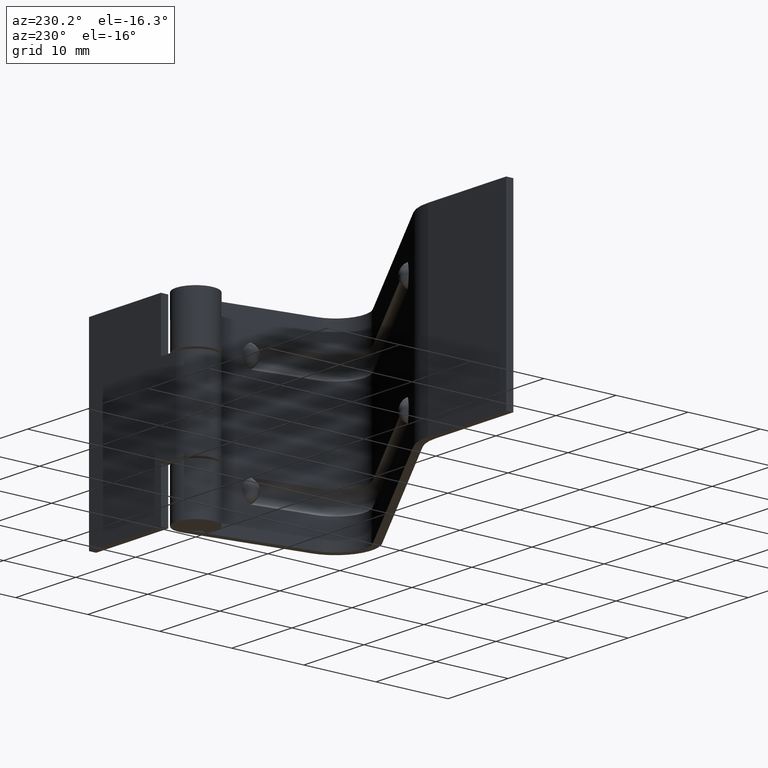
[diagram: clean part render]
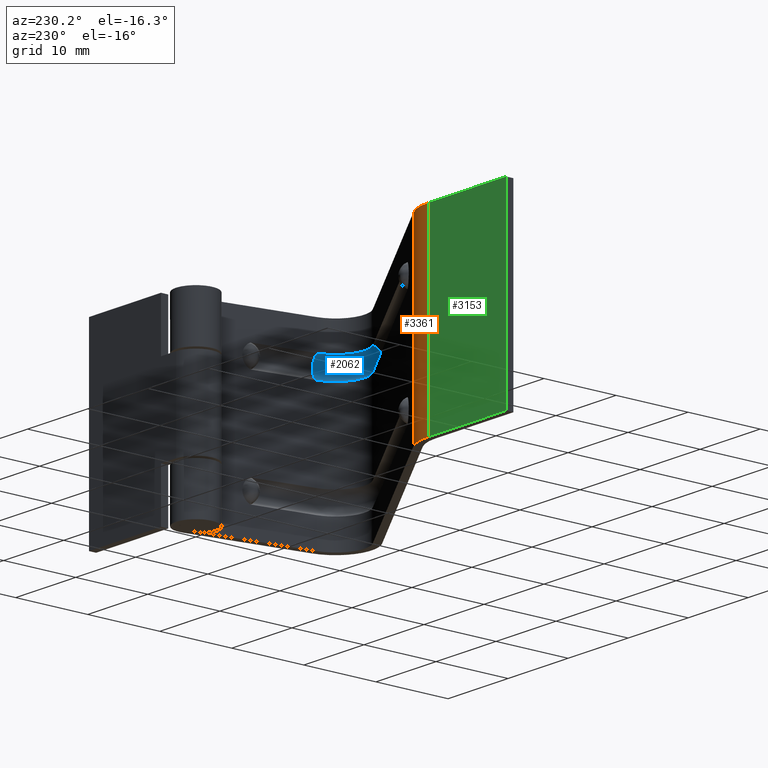
[diagram: same view with three faces highlighted in distinct colors, each labeled with its STEP entity id]
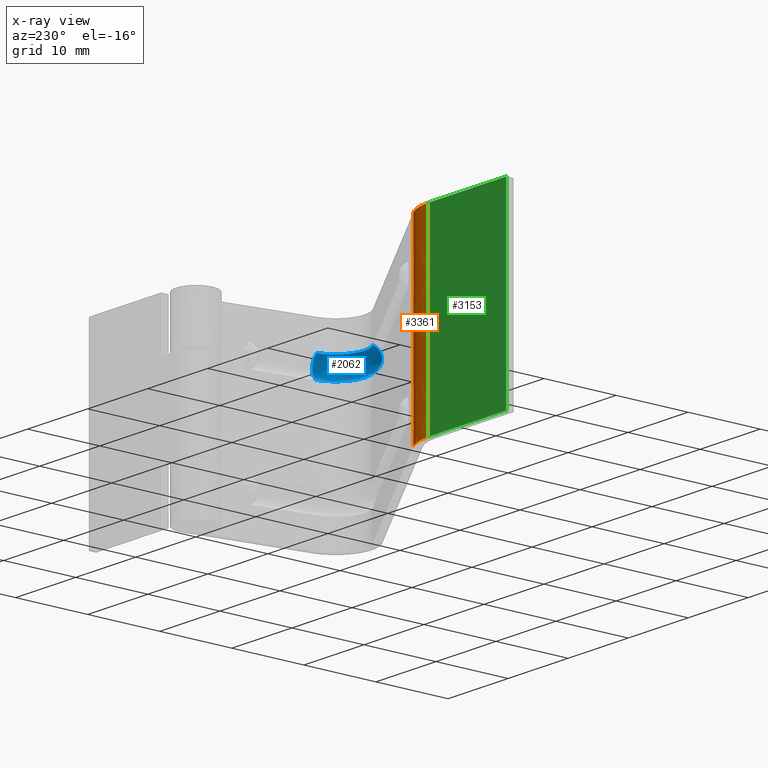
[diagram: x-ray of the same camera — body ghosted, the three highlighted faces saturated]
A machine part, auxiliary view with three faces highlighted in distinct colors.
The next image is the same camera in x-ray (body ghosted, the three faces saturated) — at least one of them is partly hidden behind the body in this view.
Their STEP definitions:

[orange] entity #3361 — the highlighted face is a freeform B-spline surface patch.
#2799=CARTESIAN_POINT('',(-42.000013541700802,2.750000000000000,26.0));
#2800=VERTEX_POINT('',#2799);
#2801=CARTESIAN_POINT('',(-38.178128604412152,1.614571214174675,26.0));
#2802=VERTEX_POINT('',#2801);
#2803=CARTESIAN_POINT('',(-42.000013541700802,2.750000000000000,26.0));
#2804=CARTESIAN_POINT('',(-39.920411033725820,2.750000000000000,26.0));
#2805=CARTESIAN_POINT('',(-38.178128604412159,1.614571214174670,26.0));
#2813=(BOUNDED_CURVE()B_SPLINE_CURVE(2,(#2803,#2804,#2805),.UNSPECIFIED.,.F.,.U.)CURVE()GEOMETRIC_REPRESENTATION_ITEM()QUASI_UNIFORM_CURVE()RATIONAL_B_SPLINE_CURVE((1.0,0.958591646046229,1.0))REPRESENTATION_ITEM(''));
#2814=EDGE_CURVE('',#2800,#2802,#2813,.T.);
#2969=CARTESIAN_POINT('',(-42.000013541700802,2.750000000000000,0.0));
#2970=VERTEX_POINT('',#2969);
#2971=CARTESIAN_POINT('',(-38.178128604412152,1.614571214174675,0.0));
#2972=VERTEX_POINT('',#2971);
#2973=CARTESIAN_POINT('',(-42.000013541700802,2.750000000000000,0.0));
#2974=CARTESIAN_POINT('',(-39.920411033725820,2.750000000000000,0.0));
#2975=CARTESIAN_POINT('',(-38.178128604412159,1.614571214174670,0.0));
#2983=(BOUNDED_CURVE()B_SPLINE_CURVE(2,(#2973,#2974,#2975),.UNSPECIFIED.,.F.,.U.)CURVE()GEOMETRIC_REPRESENTATION_ITEM()QUASI_UNIFORM_CURVE()RATIONAL_B_SPLINE_CURVE((1.0,0.958591646046229,1.0))REPRESENTATION_ITEM(''));
#2984=EDGE_CURVE('',#2970,#2972,#2983,.T.);
#3140=CARTESIAN_POINT('',(-42.000013541700802,2.750000000000000,0.0));
#3141=CARTESIAN_POINT('',(-42.000013541700802,2.750000000000000,26.0));
#3142=QUASI_UNIFORM_CURVE('',1,(#3140,#3141),.UNSPECIFIED.,.F.,.U.);
#3143=EDGE_CURVE('',#2970,#2800,#3142,.T.);
#3337=CARTESIAN_POINT('',(-42.198162288322926,2.747194943276345,-0.650000000000000));
#3338=CARTESIAN_POINT('',(-42.198162288322926,2.747194943276345,26.666249999999998));
#3339=CARTESIAN_POINT('',(-39.901314587841760,2.812237792121015,-0.650000000000001));
#3340=CARTESIAN_POINT('',(-39.901314587841760,2.812237792121015,26.666250000000005));
#3341=CARTESIAN_POINT('',(-38.012743886648515,1.503406008435285,-0.650000000000001));
#3342=CARTESIAN_POINT('',(-38.012743886648515,1.503406008435285,26.666250000000002));
#3350=(BOUNDED_SURFACE()B_SPLINE_SURFACE(1,2,((#3337,#3339,#3341),(#3338,#3340,#3342)),.UNSPECIFIED.,.F.,.F.,.U.)B_SPLINE_SURFACE_WITH_KNOTS((2,2),(3,3),(0.0,27.316250000000000),(0.0,4.477986694050300),.UNSPECIFIED.)GEOMETRIC_REPRESENTATION_ITEM()RATIONAL_B_SPLINE_SURFACE(((0.997632341696851,0.945120504605281,0.991848929808559),(0.997632341696851,0.945120504605281,0.991848929808559)))REPRESENTATION_ITEM('')SURFACE());
#3351=ORIENTED_EDGE('',*,*,#2814,.T.);
#3352=CARTESIAN_POINT('',(-38.178128604412152,1.614571214174675,0.0));
#3353=CARTESIAN_POINT('',(-38.178128604412152,1.614571214174675,26.0));
#3354=QUASI_UNIFORM_CURVE('',1,(#3352,#3353),.UNSPECIFIED.,.F.,.U.);
#3355=EDGE_CURVE('',#2972,#2802,#3354,.T.);
#3356=ORIENTED_EDGE('',*,*,#3355,.F.);
#3357=ORIENTED_EDGE('',*,*,#2984,.F.);
#3358=ORIENTED_EDGE('',*,*,#3143,.T.);
#3359=EDGE_LOOP('',(#3351,#3356,#3357,#3358));
#3360=FACE_OUTER_BOUND('',#3359,.T.);
#3361=ADVANCED_FACE('',(#3360),#3350,.T.);

[blue] entity #2062 — the highlighted face is a freeform B-spline surface patch.
#1922=CARTESIAN_POINT('',(-1.034467538305070,-15.944587033230849,19.000002277980801));
#1923=VERTEX_POINT('',#1922);
#1934=CARTESIAN_POINT('',(-1.034467538305070,-15.944587033230849,21.999997722019451));
#1935=VERTEX_POINT('',#1934);
#1936=CARTESIAN_POINT('',(-1.034467538305070,-15.944587033230849,21.999997722019451));
#1937=CARTESIAN_POINT('',(-0.049664960912181,-16.118233079529698,21.583329055834490));
#1938=CARTESIAN_POINT('',(-0.049664960912180,-16.118233079529698,20.500000000000000));
#1939=CARTESIAN_POINT('',(-0.049664960912181,-16.118233079529698,19.416670944165578));
#1940=CARTESIAN_POINT('',(-1.034467538305070,-15.944587033230849,19.000002277980801));
#1948=(BOUNDED_CURVE()B_SPLINE_CURVE(2,(#1936,#1937,#1938,#1939,#1940),.UNSPECIFIED.,.F.,.U.)B_SPLINE_CURVE_WITH_KNOTS((3,2,3),(0.0,0.500000000000000,1.0),.UNSPECIFIED.)CURVE()GEOMETRIC_REPRESENTATION_ITEM()RATIONAL_B_SPLINE_CURVE((1.0,0.832051305204674,1.0,0.832051305204674,1.0))REPRESENTATION_ITEM(''));
#1949=EDGE_CURVE('',#1935,#1923,#1948,.T.);
#1965=CARTESIAN_POINT('',(-7.361929989765980,-18.241240626427661,18.939330552587094));
#1966=CARTESIAN_POINT('',(-5.551646898517626,-19.686588483763838,18.939330552587109));
#1967=CARTESIAN_POINT('',(-3.431494070751995,-18.753257199554763,18.939330552587098));
#1968=CARTESIAN_POINT('',(-1.336283289628677,-17.830905874959271,18.939330552587098));
#1969=CARTESIAN_POINT('',(-1.157674349181865,-15.548639670128882,18.939330552587101));
#1970=CARTESIAN_POINT('',(-8.093372349662657,-19.157364540558728,19.279376349585789));
#1971=CARTESIAN_POINT('',(-5.728655884988130,-21.045377466243178,19.279376349585796));
#1972=CARTESIAN_POINT('',(-2.959166226889218,-19.826195855679142,19.279376349585792));
#1973=CARTESIAN_POINT('',(-0.222257588103194,-18.621357024653403,19.279376349585799));
#1974=CARTESIAN_POINT('',(0.011053712352799,-15.640103707189654,19.279376349585796));
#1975=CARTESIAN_POINT('',(-8.093372349662657,-19.157364540558721,20.500000000000000));
#1976=CARTESIAN_POINT('',(-5.728655884988132,-21.045377466243163,20.500000000000004));
#1977=CARTESIAN_POINT('',(-2.959166226889218,-19.826195855679138,20.500000000000000));
#1978=CARTESIAN_POINT('',(-0.222257588103194,-18.621357024653395,20.500000000000004));
#1979=CARTESIAN_POINT('',(0.011053712352799,-15.640103707189654,20.500000000000007));
#1980=CARTESIAN_POINT('',(-8.093372349662657,-19.157364540558721,21.720624563740898));
#1981=CARTESIAN_POINT('',(-5.728655884988131,-21.045377466243171,21.720624563740898));
#1982=CARTESIAN_POINT('',(-2.959166226889218,-19.826195855679135,21.720624563740891));
#1983=CARTESIAN_POINT('',(-0.222257588103194,-18.621357024653406,21.720624563740905));
#1984=CARTESIAN_POINT('',(0.011053712352799,-15.640103707189660,21.720624563740895));
#1985=CARTESIAN_POINT('',(-7.361929289998826,-18.241239749976611,22.060669772732535));
#1986=CARTESIAN_POINT('',(-5.551646729174037,-19.686587183817387,22.060669772732538));
#1987=CARTESIAN_POINT('',(-3.431494522625621,-18.753256173079851,22.060669772732528));
#1988=CARTESIAN_POINT('',(-1.336284355411352,-17.830905118738713,22.060669772732531));
#1989=CARTESIAN_POINT('',(-1.157675467298007,-15.548639582625706,22.060669772732535));
#1997=(BOUNDED_SURFACE()B_SPLINE_SURFACE(2,2,((#1965,#1970,#1975,#1980,#1985),(#1966,#1971,#1976,#1981,#1986),(#1967,#1972,#1977,#1982,#1987),(#1968,#1973,#1978,#1983,#1988),(#1969,#1974,#1979,#1984,#1989)),.UNSPECIFIED.,.F.,.F.,.U.)B_SPLINE_SURFACE_WITH_KNOTS((3,2,3),(3,2,3),(0.0,5.580308779946733,11.105273504408530),(0.0,2.169211577859827,4.338424435398080),.UNSPECIFIED.)GEOMETRIC_REPRESENTATION_ITEM()RATIONAL_B_SPLINE_SURFACE(((0.940627972825696,0.762715212370394,0.967403768386343,0.762715091618905,0.940628182737230),(0.818176909503989,0.663424853732822,0.841467028758587,0.663424748700776,0.818177092089215),(0.972322006140921,0.788414555840138,1.0,0.788414431019981,0.972322223125329),(0.819705680602044,0.664664469188033,0.843039317659177,0.664664363959733,0.819705863528432),(0.938226303473127,0.760767800850423,0.964933733421177,0.760767680407244,0.938226512848702)))REPRESENTATION_ITEM('')SURFACE());
#1998=CARTESIAN_POINT('',(-7.157627502861881,-18.601184037780900,21.999995444038749));
#1999=VERTEX_POINT('',#1998);
#2000=CARTESIAN_POINT('',(-7.157627502861881,-18.601184037780900,21.999995444038749));
#2001=CARTESIAN_POINT('',(-6.882018127036361,-18.780795537770711,21.999995505931750));
#2002=CARTESIAN_POINT('',(-6.584156513306377,-18.926224413094928,21.999995579435058));
#2003=CARTESIAN_POINT('',(-5.961895097884391,-19.139944731675840,21.999995745228780));
#2004=CARTESIAN_POINT('',(-5.637533469257731,-19.208222582319841,21.999995837509100));
#2005=CARTESIAN_POINT('',(-4.981916928341752,-19.263494270171520,21.999996035269451));
#2006=CARTESIAN_POINT('',(-4.650702391371972,-19.250484703541840,21.999996140737309));
#2007=CARTESIAN_POINT('',(-4.001441000130878,-19.143959539446929,21.999996358486129));
#2008=CARTESIAN_POINT('',(-3.683434129805209,-19.050450502199869,21.999996470753679));
#2009=CARTESIAN_POINT('',(-3.079851514986964,-18.788580364937339,21.999996695302631));
#2010=CARTESIAN_POINT('',(-2.794312941370081,-18.620235391864679,21.999996807570199));
#2011=CARTESIAN_POINT('',(-2.272966116493233,-18.218880894237110,21.999997025319090));
#2012=CARTESIAN_POINT('',(-2.037189971721333,-17.985896086593780,21.999997130787008));
#2013=CARTESIAN_POINT('',(-1.629655199019036,-17.469365950282821,21.999997328547501));
#2014=CARTESIAN_POINT('',(-1.457921668604711,-17.185852431473538,21.999997420827910));
#2015=CARTESIAN_POINT('',(-1.188881988690127,-16.585431187730219,21.999997586622321));
#2016=CARTESIAN_POINT('',(-1.091592407659954,-16.268560438982821,21.999997660126098));
#2017=CARTESIAN_POINT('',(-1.034467538305070,-15.944587033230849,21.999997722019451));
#2018=B_SPLINE_CURVE_WITH_KNOTS('',3,(#2000,#2001,#2002,#2003,#2004,#2005,#2006,#2007,#2008,#2009,#2010,#2011,#2012,#2013,#2014,#2015,#2016,#2017),.UNSPECIFIED.,.F.,.U.,(4,2,2,2,2,2,2,2,4),(0.000000698221531,0.125000000000000,0.250000000000000,0.375000000000000,0.500000000000000,0.625000000000000,0.750000000000000,0.875000000000000,1.0),.UNSPECIFIED.);
#2019=EDGE_CURVE('',#1999,#1935,#2018,.T.);
#2020=ORIENTED_EDGE('',*,*,#2019,.T.);
#2021=ORIENTED_EDGE('',*,*,#1949,.T.);
#2022=CARTESIAN_POINT('',(-7.157627502861881,-18.601184037780900,19.000004555961450));
#2023=VERTEX_POINT('',#2022);
#2024=CARTESIAN_POINT('',(-1.034467538305070,-15.944587033230849,19.000002277980801));
#2025=CARTESIAN_POINT('',(-1.091592407659954,-16.268560438982821,19.000002339874150));
#2026=CARTESIAN_POINT('',(-1.188881988690127,-16.585431187730229,19.000002413377921));
#2027=CARTESIAN_POINT('',(-1.457921668604711,-17.185852431473538,19.000002579172332));
#2028=CARTESIAN_POINT('',(-1.629655199019037,-17.469365950282828,19.000002671452741));
#2029=CARTESIAN_POINT('',(-2.037189971721333,-17.985896086593780,19.000002869213230));
#2030=CARTESIAN_POINT('',(-2.272966116493234,-18.218880894237110,19.000002974681031));
#2031=CARTESIAN_POINT('',(-2.794312941370082,-18.620235391864689,19.000003192429919));
#2032=CARTESIAN_POINT('',(-3.079851514986964,-18.788580364937339,19.000003304697589));
#2033=CARTESIAN_POINT('',(-3.683434129805210,-19.050450502199869,19.000003529246541));
#2034=CARTESIAN_POINT('',(-4.001441000130879,-19.143959539446929,19.000003641513992));
#2035=CARTESIAN_POINT('',(-4.650702391371973,-19.250484703541840,19.000003859262780));
#2036=CARTESIAN_POINT('',(-4.981916928341752,-19.263494270171520,19.000003964730752));
#2037=CARTESIAN_POINT('',(-5.637533469257732,-19.208222582319848,19.000004162491098));
#2038=CARTESIAN_POINT('',(-5.961895097884394,-19.139944731675840,19.000004254771419));
#2039=CARTESIAN_POINT('',(-6.584156513306378,-18.926224413094928,19.000004420565141));
#2040=CARTESIAN_POINT('',(-6.882018127036361,-18.780795537770722,19.000004494068460));
#2041=CARTESIAN_POINT('',(-7.157627502861881,-18.601184037780900,19.000004555961450));
#2042=B_SPLINE_CURVE_WITH_KNOTS('',3,(#2024,#2025,#2026,#2027,#2028,#2029,#2030,#2031,#2032,#2033,#2034,#2035,#2036,#2037,#2038,#2039,#2040,#2041),.UNSPECIFIED.,.F.,.U.,(4,2,2,2,2,2,2,2,4),(0.0,0.125000000000000,0.250000000000000,0.375000000000000,0.500000000000000,0.625000000000000,0.750000000000000,0.875000000000000,0.999999301778469),.UNSPECIFIED.);
#2043=EDGE_CURVE('',#1923,#2023,#2042,.T.);
#2044=ORIENTED_EDGE('',*,*,#2043,.T.);
#2045=CARTESIAN_POINT('',(-7.157627502861881,-18.601184037780900,21.999995444038749));
#2046=CARTESIAN_POINT('',(-7.703604908688604,-19.438970886601187,21.583324778345986));
#2047=CARTESIAN_POINT('',(-7.703604908688604,-19.438970886601190,20.500000000000000));
#2048=CARTESIAN_POINT('',(-7.703604908688604,-19.438970886601187,19.416675221654071));
#2049=CARTESIAN_POINT('',(-7.157627502861881,-18.601184037780900,19.000004555961450));
#2057=(BOUNDED_CURVE()B_SPLINE_CURVE(2,(#2045,#2046,#2047,#2048,#2049),.UNSPECIFIED.,.F.,.U.)B_SPLINE_CURVE_WITH_KNOTS((3,2,3),(0.0,0.500000000000000,1.0),.UNSPECIFIED.)CURVE()GEOMETRIC_REPRESENTATION_ITEM()RATIONAL_B_SPLINE_CURVE((1.0,0.832052316068755,1.0,0.832052316068755,1.0))REPRESENTATION_ITEM(''));
#2058=EDGE_CURVE('',#1999,#2023,#2057,.T.);
#2059=ORIENTED_EDGE('',*,*,#2058,.F.);
#2060=EDGE_LOOP('',(#2020,#2021,#2044,#2059));
#2061=FACE_OUTER_BOUND('',#2060,.T.);
#2062=ADVANCED_FACE('',(#2061),#1997,.F.);

[green] entity #3153 — the highlighted face is a freeform B-spline surface patch.
#2799=CARTESIAN_POINT('',(-42.000013541700802,2.750000000000000,26.0));
#2800=VERTEX_POINT('',#2799);
#2816=CARTESIAN_POINT('',(-55.0,2.750000000000000,26.0));
#2817=VERTEX_POINT('',#2816);
#2818=CARTESIAN_POINT('',(-42.000013541700802,2.750000000000000,26.0));
#2819=CARTESIAN_POINT('',(-55.0,2.750000000000000,26.0));
#2820=QUASI_UNIFORM_CURVE('',1,(#2818,#2819),.UNSPECIFIED.,.F.,.U.);
#2821=EDGE_CURVE('',#2800,#2817,#2820,.T.);
#2969=CARTESIAN_POINT('',(-42.000013541700802,2.750000000000000,0.0));
#2970=VERTEX_POINT('',#2969);
#3119=CARTESIAN_POINT('',(-55.0,2.750000000000000,0.0));
#3120=VERTEX_POINT('',#3119);
#3126=CARTESIAN_POINT('',(-42.000013541700802,2.750000000000000,0.0));
#3127=CARTESIAN_POINT('',(-55.0,2.750000000000000,0.0));
#3128=QUASI_UNIFORM_CURVE('',1,(#3126,#3127),.UNSPECIFIED.,.F.,.U.);
#3129=EDGE_CURVE('',#2970,#3120,#3128,.T.);
#3134=CARTESIAN_POINT('',(-55.649349205505381,2.750000000000000,-1.298699949606955));
#3135=CARTESIAN_POINT('',(-55.649349205505381,2.750000000000000,27.298700646981310));
#3136=CARTESIAN_POINT('',(-41.350665847171577,2.750000000000000,-1.298699949606955));
#3137=CARTESIAN_POINT('',(-41.350665847171577,2.750000000000000,27.298700646981299));
#3138=B_SPLINE_SURFACE_WITH_KNOTS('',1,1,((#3134,#3136),(#3135,#3137)),.UNSPECIFIED.,.F.,.F.,.U.,(2,2),(2,2),(0.0,28.597400596588258),(0.0,14.298683358333800),.UNSPECIFIED.);
#3139=ORIENTED_EDGE('',*,*,#2821,.F.);
#3140=CARTESIAN_POINT('',(-42.000013541700802,2.750000000000000,0.0));
#3141=CARTESIAN_POINT('',(-42.000013541700802,2.750000000000000,26.0));
#3142=QUASI_UNIFORM_CURVE('',1,(#3140,#3141),.UNSPECIFIED.,.F.,.U.);
#3143=EDGE_CURVE('',#2970,#2800,#3142,.T.);
#3144=ORIENTED_EDGE('',*,*,#3143,.F.);
#3145=ORIENTED_EDGE('',*,*,#3129,.T.);
#3146=CARTESIAN_POINT('',(-55.0,2.750000000000000,0.0));
#3147=CARTESIAN_POINT('',(-55.0,2.750000000000000,26.0));
#3148=QUASI_UNIFORM_CURVE('',1,(#3146,#3147),.UNSPECIFIED.,.F.,.U.);
#3149=EDGE_CURVE('',#3120,#2817,#3148,.T.);
#3150=ORIENTED_EDGE('',*,*,#3149,.T.);
#3151=EDGE_LOOP('',(#3139,#3144,#3145,#3150));
#3152=FACE_OUTER_BOUND('',#3151,.T.);
#3153=ADVANCED_FACE('',(#3152),#3138,.T.);